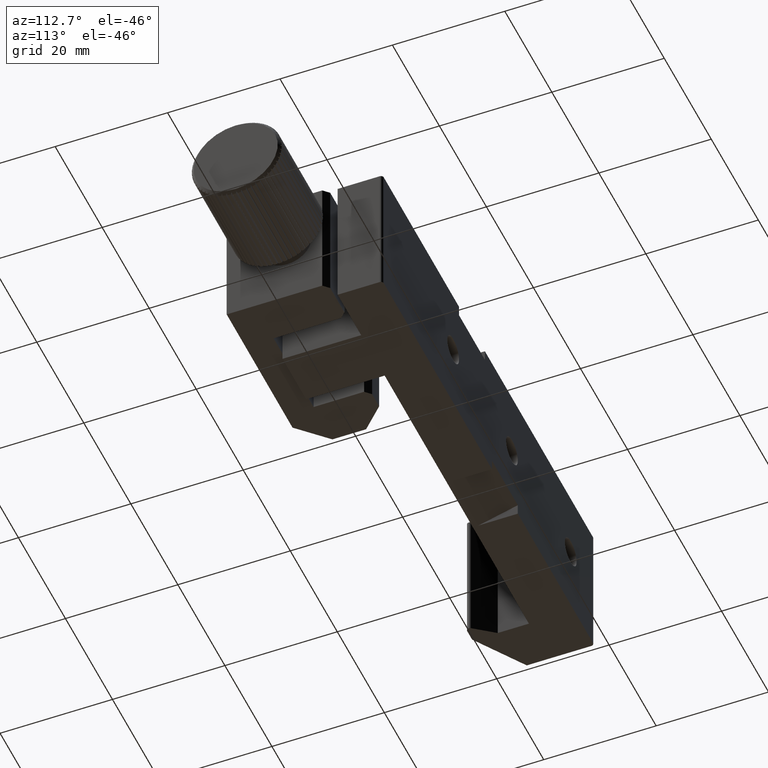
[diagram: clean part render]
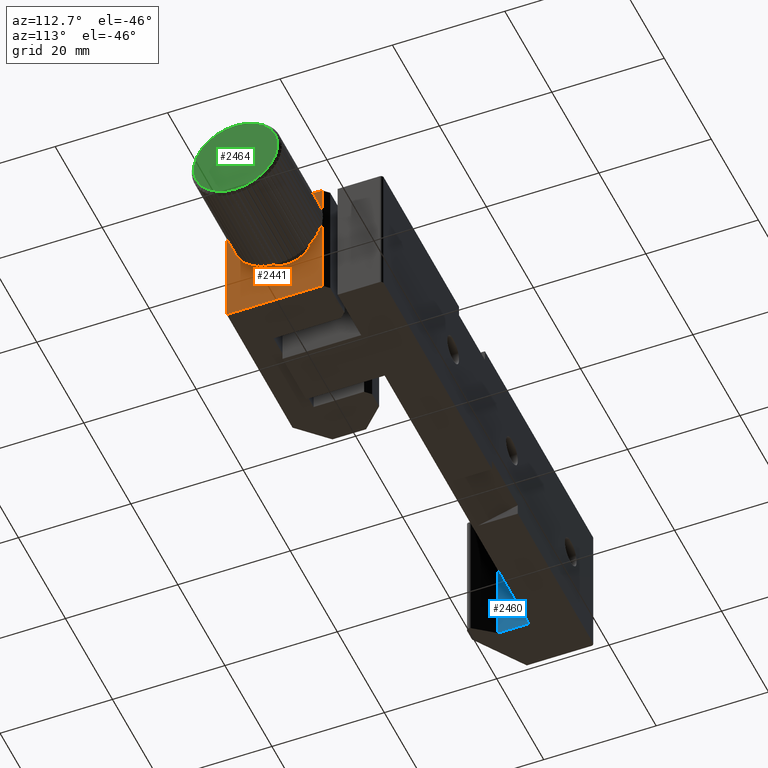
[diagram: same view with three faces highlighted in distinct colors, each labeled with its STEP entity id]
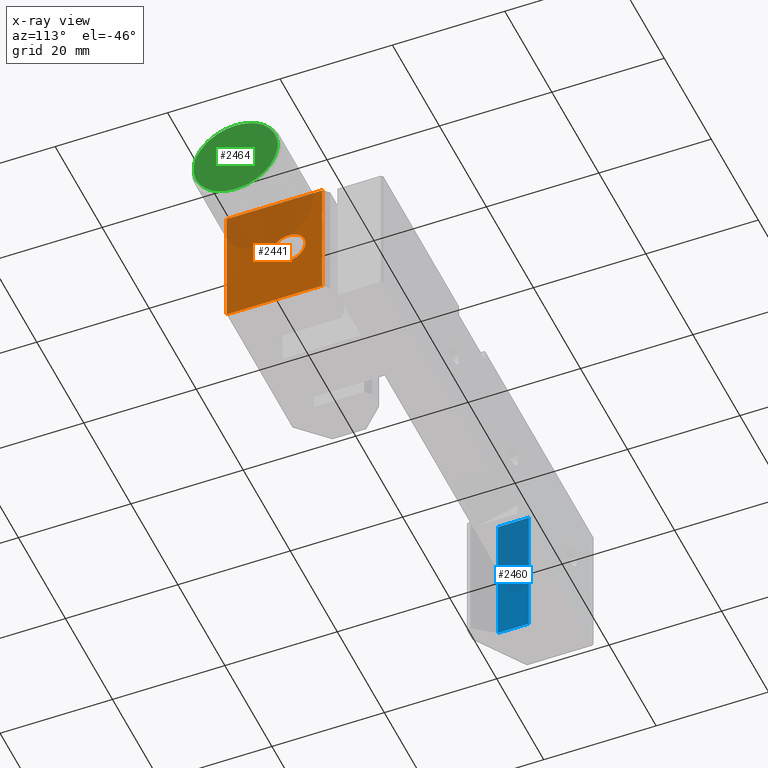
[diagram: x-ray of the same camera — body ghosted, the three highlighted faces saturated]
A machine part, auxiliary view with three faces highlighted in distinct colors.
The next image is the same camera in x-ray (body ghosted, the three faces saturated) — at least one of them is partly hidden behind the body in this view.
Their STEP definitions:

[orange] entity #2441 — the highlighted planar face has unit normal (-1, 0, 0).
#745 = LINE ( 'NONE', #3279, #747 ) ;
#747 = VECTOR ( 'NONE', #3280, 1000.000000000000000 ) ;
#814 = LINE ( 'NONE', #3377, #817 ) ;
#817 = VECTOR ( 'NONE', #3379, 1000.000000000000000 ) ;
#818 = LINE ( 'NONE', #3381, #821 ) ;
#820 = CIRCLE ( 'NONE', #1119, 3.000000000000000400 ) ;
#821 = VECTOR ( 'NONE', #3382, 1000.000000000000000 ) ;
#823 = LINE ( 'NONE', #3374, #825 ) ;
#825 = VECTOR ( 'NONE', #3388, 1000.000000000000000 ) ;
#962 = VERTEX_POINT ( 'NONE', #6518 ) ;
#1119 = AXIS2_PLACEMENT_3D ( 'NONE', #3385, #3386, #3387 ) ;
#1682 = EDGE_LOOP ( 'NONE', ( #5060 ) ) ;
#1964 = EDGE_LOOP ( 'NONE', ( #5061, #5062, #5063, #5064 ) ) ;
#2186 = CARTESIAN_POINT ( 'NONE',  ( 11.08817508845302400, -9.940469573043223800, 11.25000000000000000 ) ) ;
#2187 = CARTESIAN_POINT ( 'NONE',  ( 11.08817508845302400, 7.059530426956773600, 11.25000000000000000 ) ) ;
#2441 = ADVANCED_FACE ( 'NONE', ( #4708, #4711 ), #2806, .F. ) ;
#2666 = AXIS2_PLACEMENT_3D ( 'NONE', #2802, #2812, #2813 ) ;
#2802 = CARTESIAN_POINT ( 'NONE',  ( 11.08817508845302400, -9.940469573043223800, 11.25000000000000000 ) ) ;
#2806 = PLANE ( 'NONE',  #2666 ) ;
#2812 = DIRECTION ( 'NONE',  ( -1.000000000000000000, 0.0000000000000000000, 0.0000000000000000000 ) ) ;
#2813 = DIRECTION ( 'NONE',  ( 0.0000000000000000000, 0.0000000000000000000, 1.000000000000000000 ) ) ;
#3279 = CARTESIAN_POINT ( 'NONE',  ( 11.08817508845302400, -9.940469573043223800, 11.25000000000000000 ) ) ;
#3280 = DIRECTION ( 'NONE',  ( 0.0000000000000000000, 1.000000000000000000, 0.0000000000000000000 ) ) ;
#3374 = CARTESIAN_POINT ( 'NONE',  ( 11.08817508845302400, 7.059530426956773600, 11.25000000000000000 ) ) ;
#3377 = CARTESIAN_POINT ( 'NONE',  ( 11.08817508845302400, -9.940469573043223800, 11.25000000000000000 ) ) ;
#3379 = DIRECTION ( 'NONE',  ( -0.0000000000000000000, -0.0000000000000000000, -1.000000000000000000 ) ) ;
#3381 = CARTESIAN_POINT ( 'NONE',  ( 11.08817508845302400, -9.940469573043223800, -11.25000000000000000 ) ) ;
#3382 = DIRECTION ( 'NONE',  ( 0.0000000000000000000, 1.000000000000000000, 0.0000000000000000000 ) ) ;
#3385 = CARTESIAN_POINT ( 'NONE',  ( 11.08817508845302400, 1.059530426956774900, 0.0000000000000000000 ) ) ;
#3386 = DIRECTION ( 'NONE',  ( 1.000000000000000000, 0.0000000000000000000, 0.0000000000000000000 ) ) ;
#3387 = DIRECTION ( 'NONE',  ( 0.0000000000000000000, 0.0000000000000000000, -1.000000000000000000 ) ) ;
#3388 = DIRECTION ( 'NONE',  ( -0.0000000000000000000, -0.0000000000000000000, -1.000000000000000000 ) ) ;
#4197 = CARTESIAN_POINT ( 'NONE',  ( 11.08817508845302400, -9.940469573043223800, -11.25000000000000000 ) ) ;
#4200 = CARTESIAN_POINT ( 'NONE',  ( 11.08817508845302400, 7.059530426956773600, -11.25000000000000000 ) ) ;
#4708 = FACE_BOUND ( 'NONE', #1682, .T. ) ;
#4711 = FACE_OUTER_BOUND ( 'NONE', #1964, .T. ) ;
#4903 = VERTEX_POINT ( 'NONE', #2186 ) ;
#4904 = VERTEX_POINT ( 'NONE', #2187 ) ;
#5060 = ORIENTED_EDGE ( 'NONE', *, *, #6917, .F. ) ;
#5061 = ORIENTED_EDGE ( 'NONE', *, *, #6916, .T. ) ;
#5062 = ORIENTED_EDGE ( 'NONE', *, *, #6918, .F. ) ;
#5063 = ORIENTED_EDGE ( 'NONE', *, *, #6874, .F. ) ;
#5064 = ORIENTED_EDGE ( 'NONE', *, *, #6914, .T. ) ;
#5494 = VERTEX_POINT ( 'NONE', #4200 ) ;
#5498 = VERTEX_POINT ( 'NONE', #4197 ) ;
#6518 = CARTESIAN_POINT ( 'NONE',  ( 11.08817508845302400, 1.059530426956774900, -3.000000000000000400 ) ) ;
#6874 = EDGE_CURVE ( 'NONE', #4903, #4904, #745, .T. ) ;
#6914 = EDGE_CURVE ( 'NONE', #4903, #5498, #814, .T. ) ;
#6916 = EDGE_CURVE ( 'NONE', #5498, #5494, #818, .T. ) ;
#6917 = EDGE_CURVE ( 'NONE', #962, #962, #820, .T. ) ;
#6918 = EDGE_CURVE ( 'NONE', #4904, #5494, #823, .T. ) ;

[blue] entity #2460 — the highlighted planar face has unit normal (-1, 0, 0).
#872 = LINE ( 'NONE', #6425, #889 ) ;
#873 = LINE ( 'NONE', #6413, #879 ) ;
#874 = LINE ( 'NONE', #6409, #880 ) ;
#879 = VECTOR ( 'NONE', #6426, 1000.000000000000000 ) ;
#880 = VECTOR ( 'NONE', #6424, 1000.000000000000000 ) ;
#884 = LINE ( 'NONE', #6431, #887 ) ;
#887 = VECTOR ( 'NONE', #6432, 1000.000000000000000 ) ;
#888 = LINE ( 'NONE', #6434, #891 ) ;
#889 = VECTOR ( 'NONE', #6433, 1000.000000000000000 ) ;
#890 = LINE ( 'NONE', #6436, #893 ) ;
#891 = VECTOR ( 'NONE', #6435, 1000.000000000000000 ) ;
#893 = VECTOR ( 'NONE', #6437, 1000.000000000000000 ) ;
#1687 = ORIENTED_EDGE ( 'NONE', *, *, #6954, .T. ) ;
#1688 = ORIENTED_EDGE ( 'NONE', *, *, #6951, .F. ) ;
#1689 = ORIENTED_EDGE ( 'NONE', *, *, #6955, .F. ) ;
#1690 = ORIENTED_EDGE ( 'NONE', *, *, #6950, .F. ) ;
#1691 = ORIENTED_EDGE ( 'NONE', *, *, #6956, .F. ) ;
#1692 = ORIENTED_EDGE ( 'NONE', *, *, #6957, .T. ) ;
#1804 = EDGE_LOOP ( 'NONE', ( #1687, #1688, #1689, #1690, #1691, #1692 ) ) ;
#2230 = CARTESIAN_POINT ( 'NONE',  ( -72.03512774033066500, 9.059530426956765600, 2.104162541250068000 ) ) ;
#2240 = CARTESIAN_POINT ( 'NONE',  ( -72.03512774033066500, 9.059530426956765600, 12.50000000000000000 ) ) ;
#2241 = CARTESIAN_POINT ( 'NONE',  ( -72.03512774033066500, 3.505130579385166800, 12.50000000000000000 ) ) ;
#2242 = CARTESIAN_POINT ( 'NONE',  ( -72.03512774033066500, 9.059530426956765600, -12.50000000000000000 ) ) ;
#2244 = CARTESIAN_POINT ( 'NONE',  ( -72.03512774033066500, 3.505130579385166800, -12.50000000000000000 ) ) ;
#2460 = ADVANCED_FACE ( 'NONE', ( #4733 ), #2613, .F. ) ;
#2611 = CARTESIAN_POINT ( 'NONE',  ( -72.03512774033066500, 9.059530426956765600, 12.50000000000000000 ) ) ;
#2613 = PLANE ( 'NONE',  #2685 ) ;
#2615 = DIRECTION ( 'NONE',  ( -1.000000000000000000, 0.0000000000000000000, 0.0000000000000000000 ) ) ;
#2616 = DIRECTION ( 'NONE',  ( 0.0000000000000000000, 0.0000000000000000000, 1.000000000000000000 ) ) ;
#2685 = AXIS2_PLACEMENT_3D ( 'NONE', #2611, #2615, #2616 ) ;
#4207 = CARTESIAN_POINT ( 'NONE',  ( -72.03512774033066500, 9.059530426956765600, -2.104162541250069700 ) ) ;
#4733 = FACE_OUTER_BOUND ( 'NONE', #1804, .T. ) ;
#4992 = VERTEX_POINT ( 'NONE', #2230 ) ;
#5002 = VERTEX_POINT ( 'NONE', #2240 ) ;
#5003 = VERTEX_POINT ( 'NONE', #2241 ) ;
#5004 = VERTEX_POINT ( 'NONE', #2242 ) ;
#5006 = VERTEX_POINT ( 'NONE', #2244 ) ;
#5503 = VERTEX_POINT ( 'NONE', #4207 ) ;
#6409 = CARTESIAN_POINT ( 'NONE',  ( -72.03512774033066500, 9.059530426956765600, 12.50000000000000000 ) ) ;
#6413 = CARTESIAN_POINT ( 'NONE',  ( -72.03512774033066500, 9.059530426956765600, 12.50000000000000000 ) ) ;
#6424 = DIRECTION ( 'NONE',  ( -0.0000000000000000000, -0.0000000000000000000, -1.000000000000000000 ) ) ;
#6425 = CARTESIAN_POINT ( 'NONE',  ( -72.03512774033066500, 9.059530426956765600, 12.50000000000000000 ) ) ;
#6426 = DIRECTION ( 'NONE',  ( -0.0000000000000000000, -0.0000000000000000000, -1.000000000000000000 ) ) ;
#6431 = CARTESIAN_POINT ( 'NONE',  ( -72.03512774033066500, 9.059530426956765600, -12.50000000000000000 ) ) ;
#6432 = DIRECTION ( 'NONE',  ( -0.0000000000000000000, 1.000000000000000000, -0.0000000000000000000 ) ) ;
#6433 = DIRECTION ( 'NONE',  ( -0.0000000000000000000, -0.0000000000000000000, -1.000000000000000000 ) ) ;
#6434 = CARTESIAN_POINT ( 'NONE',  ( -72.03512774033066500, 9.059530426956765600, 12.50000000000000000 ) ) ;
#6435 = DIRECTION ( 'NONE',  ( -0.0000000000000000000, 1.000000000000000000, -0.0000000000000000000 ) ) ;
#6436 = CARTESIAN_POINT ( 'NONE',  ( -72.03512774033066500, 3.505130579385166800, 12.50000000000000000 ) ) ;
#6437 = DIRECTION ( 'NONE',  ( -0.0000000000000000000, -0.0000000000000000000, -1.000000000000000000 ) ) ;
#6950 = EDGE_CURVE ( 'NONE', #5002, #4992, #874, .T. ) ;
#6951 = EDGE_CURVE ( 'NONE', #5503, #5004, #873, .T. ) ;
#6954 = EDGE_CURVE ( 'NONE', #5006, #5004, #884, .T. ) ;
#6955 = EDGE_CURVE ( 'NONE', #4992, #5503, #872, .T. ) ;
#6956 = EDGE_CURVE ( 'NONE', #5003, #5002, #888, .T. ) ;
#6957 = EDGE_CURVE ( 'NONE', #5003, #5006, #890, .T. ) ;

[green] entity #2464 — the highlighted planar face has unit normal (1, 0, 0).
#761 = CIRCLE ( 'NONE', #1114, 7.499999999999992900 ) ;
#955 = VERTEX_POINT ( 'NONE', #6513 ) ;
#1114 = AXIS2_PLACEMENT_3D ( 'NONE', #3315, #3316, #3317 ) ;
#1960 = EDGE_LOOP ( 'NONE', ( #3930 ) ) ;
#2464 = ADVANCED_FACE ( 'NONE', ( #4744 ), #2628, .T. ) ;
#2624 = CARTESIAN_POINT ( 'NONE',  ( 33.58817508845302100, 1.059530426956774900, 0.0000000000000000000 ) ) ;
#2628 = PLANE ( 'NONE',  #2689 ) ;
#2630 = DIRECTION ( 'NONE',  ( 1.000000000000000000, 0.0000000000000000000, 0.0000000000000000000 ) ) ;
#2631 = DIRECTION ( 'NONE',  ( 0.0000000000000000000, 0.0000000000000000000, -1.000000000000000000 ) ) ;
#2689 = AXIS2_PLACEMENT_3D ( 'NONE', #2624, #2630, #2631 ) ;
#3315 = CARTESIAN_POINT ( 'NONE',  ( 33.58817508845302100, 1.059530426956774900, 0.0000000000000000000 ) ) ;
#3316 = DIRECTION ( 'NONE',  ( 1.000000000000000000, 0.0000000000000000000, 0.0000000000000000000 ) ) ;
#3317 = DIRECTION ( 'NONE',  ( 0.0000000000000000000, 0.0000000000000000000, -1.000000000000000000 ) ) ;
#3930 = ORIENTED_EDGE ( 'NONE', *, *, #6886, .T. ) ;
#4744 = FACE_OUTER_BOUND ( 'NONE', #1960, .T. ) ;
#6513 = CARTESIAN_POINT ( 'NONE',  ( 33.58817508845302100, 1.059530426956774900, -7.499999999999992900 ) ) ;
#6886 = EDGE_CURVE ( 'NONE', #955, #955, #761, .T. ) ;